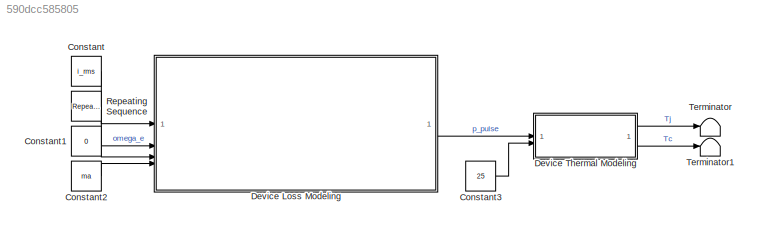
MODEL slx_590dcc585805
KIND model
CONFIG AbsTol = auto
CONFIG EnableMultiTasking = off
CONFIG FixedStep = auto
CONFIG MaxStep = simu.max_stepSize
CONFIG MinStep = auto
CONFIG RelTol = 1e-3
CONFIG SampleTimeConstraint = Unconstrained
CONFIG SolverName = VariableStepAuto
CONFIG StartTime = 0.0
CONFIG StopTime = simu.sim_time
BLOCK [Constant] Constant
  Value = i_rms
BLOCK [Constant] Constant1
  Value = 0
BLOCK [Constant] Constant2
  Value = ma
BLOCK [Constant] Constant3
  Value = 25
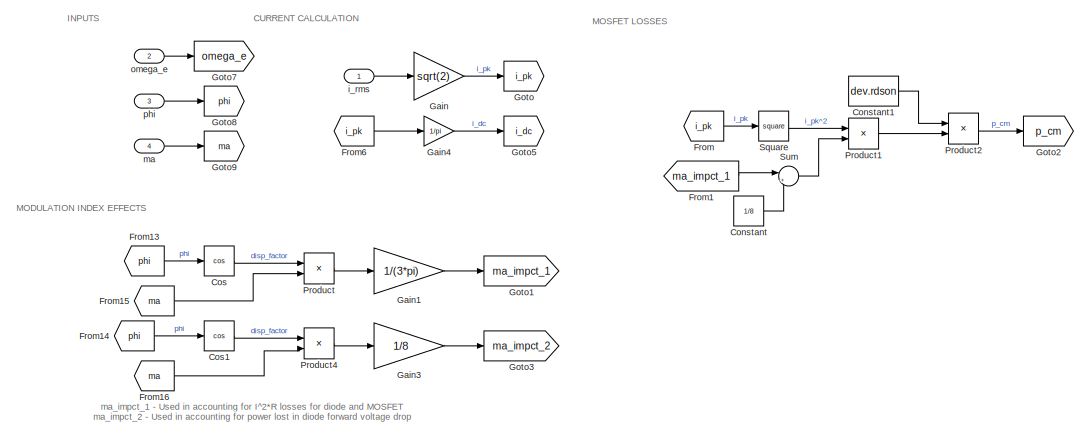
[diagram: Device Loss Modeling - part 1/2, left side, full height]
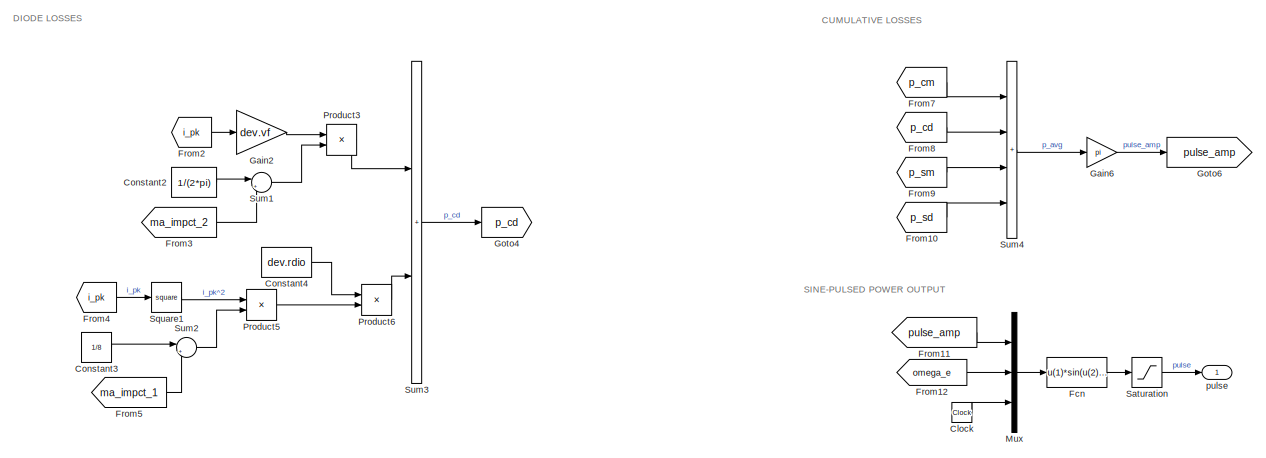
[diagram: Device Loss Modeling - part 2/2, right side, full height]
BLOCK [SubSystem] Device Loss Modeling
BLOCK [Clock] Device Loss Modeling/Clock
BLOCK [Constant] Device Loss Modeling/Constant
  Value = 1/8
BLOCK [Constant] Device Loss Modeling/Constant1
  Value = dev.rdson
BLOCK [Constant] Device Loss Modeling/Constant2
  Value = 1/(2*pi)
BLOCK [Constant] Device Loss Modeling/Constant3
  Value = 1/8
BLOCK [Constant] Device Loss Modeling/Constant4
  Value = dev.rdio
BLOCK [Trigonometry] Device Loss Modeling/Cos
  Operator = cos
BLOCK [Trigonometry] Device Loss Modeling/Cos1
  Operator = cos
BLOCK [Fcn] Device Loss Modeling/Fcn
  Expr = u(1)*sin(u(2)*u(3))
BLOCK [From] Device Loss Modeling/From
  GotoTag = i_pk
BLOCK [From] Device Loss Modeling/From1
  GotoTag = ma_impct_1
BLOCK [From] Device Loss Modeling/From10
  GotoTag = p_sd
BLOCK [From] Device Loss Modeling/From11
  GotoTag = pulse_amp
BLOCK [From] Device Loss Modeling/From12
  GotoTag = omega_e
BLOCK [From] Device Loss Modeling/From13
  GotoTag = phi
BLOCK [From] Device Loss Modeling/From14
  GotoTag = phi
BLOCK [From] Device Loss Modeling/From15
  GotoTag = ma
BLOCK [From] Device Loss Modeling/From16
  GotoTag = ma
BLOCK [From] Device Loss Modeling/From2
  GotoTag = i_pk
BLOCK [From] Device Loss Modeling/From3
  GotoTag = ma_impct_2
BLOCK [From] Device Loss Modeling/From4
  GotoTag = i_pk
BLOCK [From] Device Loss Modeling/From5
  GotoTag = ma_impct_1
BLOCK [From] Device Loss Modeling/From6
  GotoTag = i_pk
BLOCK [From] Device Loss Modeling/From7
  GotoTag = p_cm
BLOCK [From] Device Loss Modeling/From8
  GotoTag = p_cd
BLOCK [From] Device Loss Modeling/From9
  GotoTag = p_sm
BLOCK [Gain] Device Loss Modeling/Gain
  Gain = sqrt(2)
BLOCK [Gain] Device Loss Modeling/Gain1
  Gain = 1/(3*pi)
BLOCK [Gain] Device Loss Modeling/Gain2
  Gain = dev.vf
BLOCK [Gain] Device Loss Modeling/Gain3
  Gain = 1/8
BLOCK [Gain] Device Loss Modeling/Gain4
  Gain = 1/pi
BLOCK [Gain] Device Loss Modeling/Gain6
  Gain = pi
BLOCK [Goto] Device Loss Modeling/Goto
  GotoTag = i_pk
BLOCK [Goto] Device Loss Modeling/Goto1
  GotoTag = ma_impct_1
BLOCK [Goto] Device Loss Modeling/Goto2
  GotoTag = p_cm
BLOCK [Goto] Device Loss Modeling/Goto3
  GotoTag = ma_impct_2
BLOCK [Goto] Device Loss Modeling/Goto4
  GotoTag = p_cd
BLOCK [Goto] Device Loss Modeling/Goto5
  GotoTag = i_dc
BLOCK [Goto] Device Loss Modeling/Goto6
  GotoTag = pulse_amp
BLOCK [Goto] Device Loss Modeling/Goto7
  GotoTag = omega_e
BLOCK [Goto] Device Loss Modeling/Goto8
  GotoTag = phi
BLOCK [Goto] Device Loss Modeling/Goto9
  GotoTag = ma
BLOCK [Mux] Device Loss Modeling/Mux
  DisplayOption = bar
  Inputs = 3
BLOCK [Product] Device Loss Modeling/Product
BLOCK [Product] Device Loss Modeling/Product1
BLOCK [Product] Device Loss Modeling/Product2
BLOCK [Product] Device Loss Modeling/Product3
BLOCK [Product] Device Loss Modeling/Product4
BLOCK [Product] Device Loss Modeling/Product5
BLOCK [Product] Device Loss Modeling/Product6
BLOCK [Saturate] Device Loss Modeling/Saturation
  LowerLimit = 0
  UpperLimit = inf
BLOCK [Math] Device Loss Modeling/Square
  Operator = square
BLOCK [Math] Device Loss Modeling/Square1
  Operator = square
BLOCK [Sum] Device Loss Modeling/Sum
  Inputs = |++
BLOCK [Sum] Device Loss Modeling/Sum1
  Inputs = |+-
BLOCK [Sum] Device Loss Modeling/Sum2
  Inputs = |+-
BLOCK [Sum] Device Loss Modeling/Sum3
  IconShape = rectangular
BLOCK [Sum] Device Loss Modeling/Sum4
  IconShape = rectangular
  Inputs = ++++
BLOCK [Inport] Device Loss Modeling/i_rms
BLOCK [Inport] Device Loss Modeling/ma
  Port = 4
BLOCK [Inport] Device Loss Modeling/omega_e
  Port = 2
BLOCK [Inport] Device Loss Modeling/phi
  Port = 3
BLOCK [Outport] Device Loss Modeling/pulse
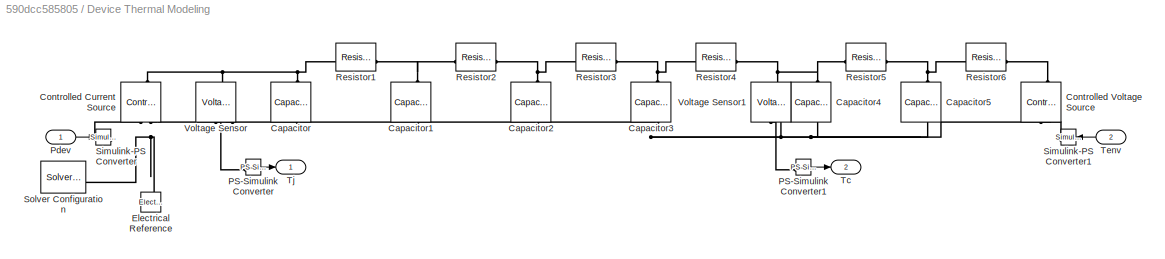
BLOCK [SubSystem] Device Thermal Modeling
BLOCK [Reference] Device Thermal Modeling/Capacitor  REF=fl_lib/Electrical/Electrical Elements/Capacitor
  NameLocation = left
  SourceBlock = fl_lib/Electrical/Electrical Elements/Capacitor
  SourceType = Capacitor
BLOCK [Reference] Device Thermal Modeling/Capacitor1  REF=fl_lib/Electrical/Electrical Elements/Capacitor
  NameLocation = left
  SourceBlock = fl_lib/Electrical/Electrical Elements/Capacitor
  SourceType = Capacitor
BLOCK [Reference] Device Thermal Modeling/Capacitor2  REF=fl_lib/Electrical/Electrical Elements/Capacitor
  NameLocation = left
  SourceBlock = fl_lib/Electrical/Electrical Elements/Capacitor
  SourceType = Capacitor
BLOCK [Reference] Device Thermal Modeling/Capacitor3  REF=fl_lib/Electrical/Electrical Elements/Capacitor
  NameLocation = left
  SourceBlock = fl_lib/Electrical/Electrical Elements/Capacitor
  SourceType = Capacitor
BLOCK [Reference] Device Thermal Modeling/Capacitor4  REF=fl_lib/Electrical/Electrical Elements/Capacitor
  NameLocation = left
  SourceBlock = fl_lib/Electrical/Electrical Elements/Capacitor
  SourceType = Capacitor
BLOCK [Reference] Device Thermal Modeling/Capacitor5  REF=fl_lib/Electrical/Electrical Elements/Capacitor
  NameLocation = left
  SourceBlock = fl_lib/Electrical/Electrical Elements/Capacitor
  SourceType = Capacitor
BLOCK [Reference] Device Thermal Modeling/Controlled Current Source  REF=fl_lib/Electrical/Electrical Sources/Controlled Current
Source
  NameLocation = right
  SourceBlock = fl_lib/Electrical/Electrical Sources/Controlled Current\nSource
  SourceType = Controlled Current\nSource
BLOCK [Reference] Device Thermal Modeling/Controlled Voltage Source  REF=fl_lib/Electrical/Electrical Sources/Controlled Voltage
Source
  NameLocation = right
  SourceBlock = fl_lib/Electrical/Electrical Sources/Controlled Voltage\nSource
  SourceType = Controlled Voltage\nSource
BLOCK [Reference] Device Thermal Modeling/Electrical Reference  REF=fl_lib/Electrical/Electrical Elements/Electrical Reference
  NameLocation = right
  SourceBlock = fl_lib/Electrical/Electrical Elements/Electrical Reference
  SourceType = Electrical Reference
BLOCK [Reference] Device Thermal Modeling/PS-Simulink Converter  REF=nesl_utility/PS-Simulink
Converter
  SourceBlock = nesl_utility/PS-Simulink\nConverter
  SourceType = PS-Simulink\nConverter
BLOCK [Reference] Device Thermal Modeling/PS-Simulink Converter1  REF=nesl_utility/PS-Simulink
Converter
  SourceBlock = nesl_utility/PS-Simulink\nConverter
  SourceType = PS-Simulink\nConverter
BLOCK [Inport] Device Thermal Modeling/Pdev
BLOCK [Reference] Device Thermal Modeling/Resistor1  REF=fl_lib/Electrical/Electrical Elements/Resistor
  SourceBlock = fl_lib/Electrical/Electrical Elements/Resistor
  SourceType = Resistor
BLOCK [Reference] Device Thermal Modeling/Resistor2  REF=fl_lib/Electrical/Electrical Elements/Resistor
  SourceBlock = fl_lib/Electrical/Electrical Elements/Resistor
  SourceType = Resistor
BLOCK [Reference] Device Thermal Modeling/Resistor3  REF=fl_lib/Electrical/Electrical Elements/Resistor
  SourceBlock = fl_lib/Electrical/Electrical Elements/Resistor
  SourceType = Resistor
BLOCK [Reference] Device Thermal Modeling/Resistor4  REF=fl_lib/Electrical/Electrical Elements/Resistor
  SourceBlock = fl_lib/Electrical/Electrical Elements/Resistor
  SourceType = Resistor
BLOCK [Reference] Device Thermal Modeling/Resistor5  REF=fl_lib/Electrical/Electrical Elements/Resistor
  SourceBlock = fl_lib/Electrical/Electrical Elements/Resistor
  SourceType = Resistor
BLOCK [Reference] Device Thermal Modeling/Resistor6  REF=fl_lib/Electrical/Electrical Elements/Resistor
  SourceBlock = fl_lib/Electrical/Electrical Elements/Resistor
  SourceType = Resistor
BLOCK [Reference] Device Thermal Modeling/Simulink-PS Converter  REF=nesl_utility/Simulink-PS
Converter
  SourceBlock = nesl_utility/Simulink-PS\nConverter
  SourceType = Simulink-PS\nConverter
BLOCK [Reference] Device Thermal Modeling/Simulink-PS Converter1  REF=nesl_utility/Simulink-PS
Converter
  NameLocation = top
  SourceBlock = nesl_utility/Simulink-PS\nConverter
  SourceType = Simulink-PS\nConverter
BLOCK [Reference] Device Thermal Modeling/Solver Configuration  REF=nesl_utility/Solver
Configuration
  SourceBlock = nesl_utility/Solver\nConfiguration
  SourceType = Solver\nConfiguration
BLOCK [Outport] Device Thermal Modeling/Tc
  Port = 2
BLOCK [Inport] Device Thermal Modeling/Tenv
  NameLocation = top
  Port = 2
BLOCK [Outport] Device Thermal Modeling/Tj
BLOCK [Reference] Device Thermal Modeling/Voltage Sensor  REF=fl_lib/Electrical/Electrical Sensors/Voltage Sensor
  NameLocation = right
  SourceBlock = fl_lib/Electrical/Electrical Sensors/Voltage Sensor
  SourceType = Voltage Sensor
BLOCK [Reference] Device Thermal Modeling/Voltage Sensor1  REF=fl_lib/Electrical/Electrical Sensors/Voltage Sensor
  NameLocation = right
  SourceBlock = fl_lib/Electrical/Electrical Sensors/Voltage Sensor
  SourceType = Voltage Sensor
BLOCK [Reference] Repeating Sequence  REF=simulink/Sources/Repeating
Sequence
  SourceBlock = simulink/Sources/Repeating\nSequence
  SourceType = Repeating table
BLOCK [Terminator] Terminator
BLOCK [Terminator] Terminator1
ANNOTATION Device Loss Modeling: CUMULATIVE LOSSES
ANNOTATION Device Loss Modeling: CURRENT CALCULATION
ANNOTATION Device Loss Modeling: DIODE LOSSES
ANNOTATION Device Loss Modeling: INPUTS
ANNOTATION Device Loss Modeling: MODULATION INDEX EFFECTS
ANNOTATION Device Loss Modeling: MOSFET LOSSES
ANNOTATION Device Loss Modeling: SINE-PULSED POWER OUTPUT
ANNOTATION Device Loss Modeling: ma_impct_1 - Used in accounting for I^2*R losses for diode and MOSFET ma_impct_2 - Used in accounting for power lost in diode forward voltage drop
LINE Constant1:1 -> Device Loss Modeling:3
LINE Constant2:1 -> Device Loss Modeling:4
LINE Constant3:1 -> Device Thermal Modeling:2
LINE Constant:1 -> Device Loss Modeling:1
LINE Device Loss Modeling/Clock:1 -> Device Loss Modeling/Mux:3
LINE Device Loss Modeling/Constant1:1 -> Device Loss Modeling/Product2:1
LINE Device Loss Modeling/Constant2:1 -> Device Loss Modeling/Sum1:1
LINE Device Loss Modeling/Constant3:1 -> Device Loss Modeling/Sum2:1
LINE Device Loss Modeling/Constant4:1 -> Device Loss Modeling/Product6:1
LINE Device Loss Modeling/Constant:1 -> Device Loss Modeling/Sum:2
LINE Device Loss Modeling/Cos1:1 -> Device Loss Modeling/Product4:1
LINE Device Loss Modeling/Cos:1 -> Device Loss Modeling/Product:1
LINE Device Loss Modeling/Fcn:1 -> Device Loss Modeling/Saturation:1
LINE Device Loss Modeling/From10:1 -> Device Loss Modeling/Sum4:4
LINE Device Loss Modeling/From11:1 -> Device Loss Modeling/Mux:1
LINE Device Loss Modeling/From12:1 -> Device Loss Modeling/Mux:2
LINE Device Loss Modeling/From13:1 -> Device Loss Modeling/Cos:1
LINE Device Loss Modeling/From14:1 -> Device Loss Modeling/Cos1:1
LINE Device Loss Modeling/From15:1 -> Device Loss Modeling/Product:2
LINE Device Loss Modeling/From16:1 -> Device Loss Modeling/Product4:2
LINE Device Loss Modeling/From1:1 -> Device Loss Modeling/Sum:1
LINE Device Loss Modeling/From2:1 -> Device Loss Modeling/Gain2:1
LINE Device Loss Modeling/From3:1 -> Device Loss Modeling/Sum1:2
LINE Device Loss Modeling/From4:1 -> Device Loss Modeling/Square1:1
LINE Device Loss Modeling/From5:1 -> Device Loss Modeling/Sum2:2
LINE Device Loss Modeling/From6:1 -> Device Loss Modeling/Gain4:1
LINE Device Loss Modeling/From7:1 -> Device Loss Modeling/Sum4:1
LINE Device Loss Modeling/From8:1 -> Device Loss Modeling/Sum4:2
LINE Device Loss Modeling/From9:1 -> Device Loss Modeling/Sum4:3
LINE Device Loss Modeling/From:1 -> Device Loss Modeling/Square:1
LINE Device Loss Modeling/Gain1:1 -> Device Loss Modeling/Goto1:1
LINE Device Loss Modeling/Gain2:1 -> Device Loss Modeling/Product3:1
LINE Device Loss Modeling/Gain3:1 -> Device Loss Modeling/Goto3:1
LINE Device Loss Modeling/Gain4:1 -> Device Loss Modeling/Goto5:1
LINE Device Loss Modeling/Gain6:1 -> Device Loss Modeling/Goto6:1
LINE Device Loss Modeling/Gain:1 -> Device Loss Modeling/Goto:1
LINE Device Loss Modeling/Mux:1 -> Device Loss Modeling/Fcn:1
LINE Device Loss Modeling/Product1:1 -> Device Loss Modeling/Product2:2
LINE Device Loss Modeling/Product2:1 -> Device Loss Modeling/Goto2:1
LINE Device Loss Modeling/Product3:1 -> Device Loss Modeling/Sum3:1
LINE Device Loss Modeling/Product4:1 -> Device Loss Modeling/Gain3:1
LINE Device Loss Modeling/Product5:1 -> Device Loss Modeling/Product6:2
LINE Device Loss Modeling/Product6:1 -> Device Loss Modeling/Sum3:2
LINE Device Loss Modeling/Product:1 -> Device Loss Modeling/Gain1:1
LINE Device Loss Modeling/Saturation:1 -> Device Loss Modeling/pulse:1
LINE Device Loss Modeling/Square1:1 -> Device Loss Modeling/Product5:1
LINE Device Loss Modeling/Square:1 -> Device Loss Modeling/Product1:1
LINE Device Loss Modeling/Sum1:1 -> Device Loss Modeling/Product3:2
LINE Device Loss Modeling/Sum2:1 -> Device Loss Modeling/Product5:2
LINE Device Loss Modeling/Sum3:1 -> Device Loss Modeling/Goto4:1
LINE Device Loss Modeling/Sum4:1 -> Device Loss Modeling/Gain6:1
LINE Device Loss Modeling/Sum:1 -> Device Loss Modeling/Product1:2
LINE Device Loss Modeling/i_rms:1 -> Device Loss Modeling/Gain:1
LINE Device Loss Modeling/ma:1 -> Device Loss Modeling/Goto9:1
LINE Device Loss Modeling/omega_e:1 -> Device Loss Modeling/Goto7:1
LINE Device Loss Modeling/phi:1 -> Device Loss Modeling/Goto8:1
LINE Device Loss Modeling:1 -> Device Thermal Modeling:1
LINE Device Thermal Modeling/PS-Simulink Converter1:1 -> Device Thermal Modeling/Tc:1
LINE Device Thermal Modeling/PS-Simulink Converter:1 -> Device Thermal Modeling/Tj:1
LINE Device Thermal Modeling/Pdev:1 -> Device Thermal Modeling/Simulink-PS Converter:1
LINE Device Thermal Modeling/Tenv:1 -> Device Thermal Modeling/Simulink-PS Converter1:1
LINE Device Thermal Modeling:1 -> Terminator:1
LINE Device Thermal Modeling:2 -> Terminator1:1
LINE Repeating Sequence:1 -> Device Loss Modeling:2
PNET net1: Device Thermal Modeling/Capacitor1:LConn1 -- Device Thermal Modeling/Resistor1:RConn1 -- Device Thermal Modeling/Resistor2:LConn1
PNET net2: Device Thermal Modeling/Capacitor1:RConn1 -- Device Thermal Modeling/Capacitor2:RConn1 -- Device Thermal Modeling/Capacitor3:RConn1 -- Device Thermal Modeling/Capacitor4:RConn1 -- Device Thermal Modeling/Capacitor5:RConn1 -- Device Thermal Modeling/Capacitor:RConn1 -- Device Thermal Modeling/Controlled Current Source:RConn2 -- Device Thermal Modeling/Controlled Voltage Source:RConn2 -- Device Thermal Modeling/Electrical Reference:LConn1 -- Device Thermal Modeling/Solver Configuration:RConn1 -- Device Thermal Modeling/Voltage Sensor1:RConn2 -- Device Thermal Modeling/Voltage Sensor:RConn2
PNET net3: Device Thermal Modeling/Capacitor2:LConn1 -- Device Thermal Modeling/Resistor2:RConn1 -- Device Thermal Modeling/Resistor3:LConn1
PNET net4: Device Thermal Modeling/Capacitor3:LConn1 -- Device Thermal Modeling/Resistor3:RConn1 -- Device Thermal Modeling/Resistor4:LConn1
PNET net5: Device Thermal Modeling/Capacitor4:LConn1 -- Device Thermal Modeling/Resistor4:RConn1 -- Device Thermal Modeling/Resistor5:LConn1 -- Device Thermal Modeling/Voltage Sensor1:LConn1
PNET net6: Device Thermal Modeling/Capacitor5:LConn1 -- Device Thermal Modeling/Resistor5:RConn1 -- Device Thermal Modeling/Resistor6:LConn1
PNET net7: Device Thermal Modeling/Capacitor:LConn1 -- Device Thermal Modeling/Controlled Current Source:LConn1 -- Device Thermal Modeling/Resistor1:LConn1 -- Device Thermal Modeling/Voltage Sensor:LConn1
PLINE Device Thermal Modeling/Controlled Current Source:RConn1 -- Device Thermal Modeling/Simulink-PS Converter:RConn1
PLINE Device Thermal Modeling/Controlled Voltage Source:LConn1 -- Device Thermal Modeling/Resistor6:RConn1
PLINE Device Thermal Modeling/Controlled Voltage Source:RConn1 -- Device Thermal Modeling/Simulink-PS Converter1:RConn1
PLINE Device Thermal Modeling/PS-Simulink Converter1:LConn1 -- Device Thermal Modeling/Voltage Sensor1:RConn1
PLINE Device Thermal Modeling/PS-Simulink Converter:LConn1 -- Device Thermal Modeling/Voltage Sensor:RConn1
note: PNET lines group multi-terminal physical nets as a canonical sorted terminal list (undirected conserving connections); 2-terminal nets keep the pairwise PLINE form
